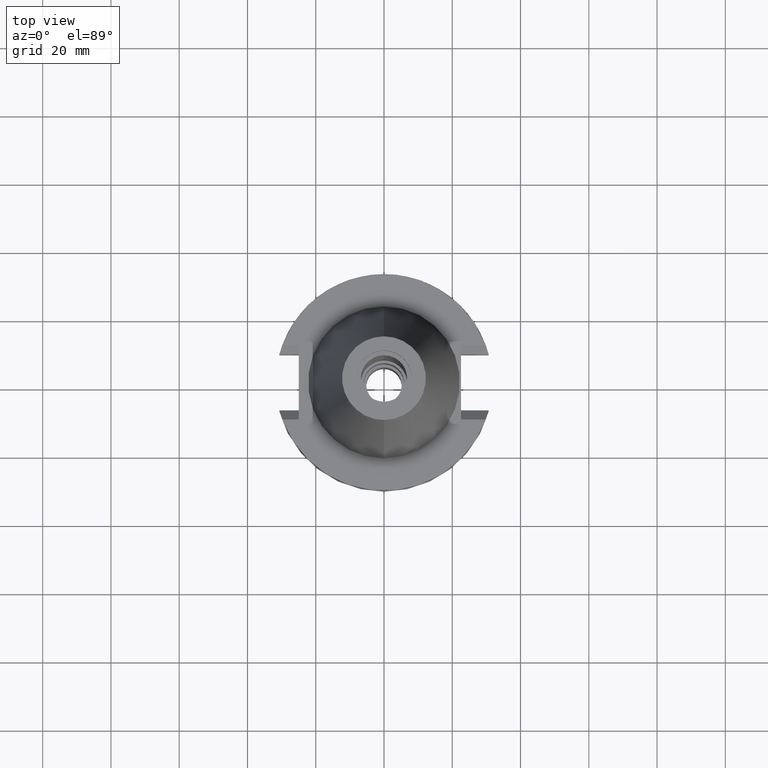
[diagram: clean part render]
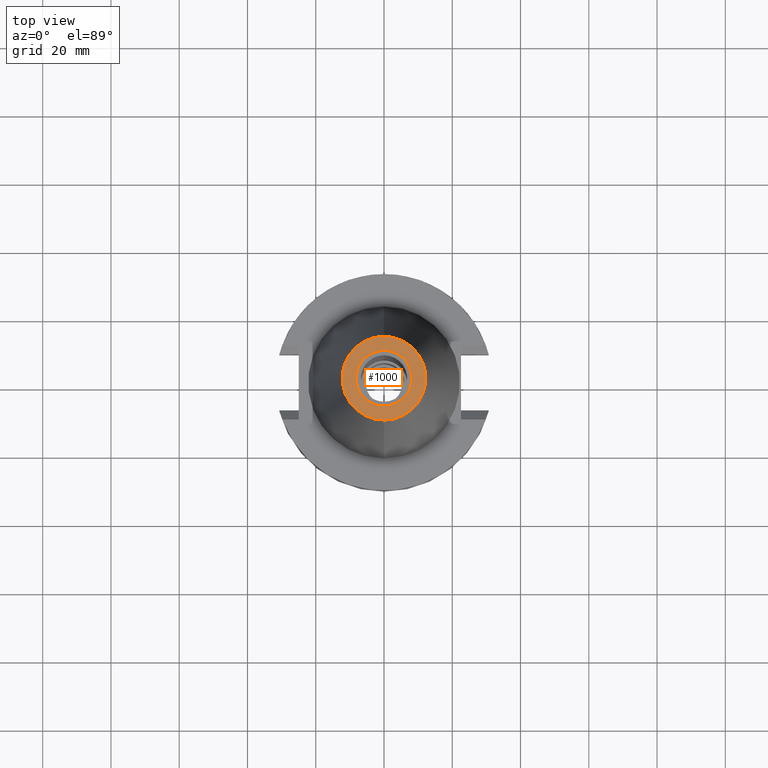
[diagram: same view with one face highlighted and labeled with its STEP entity id]
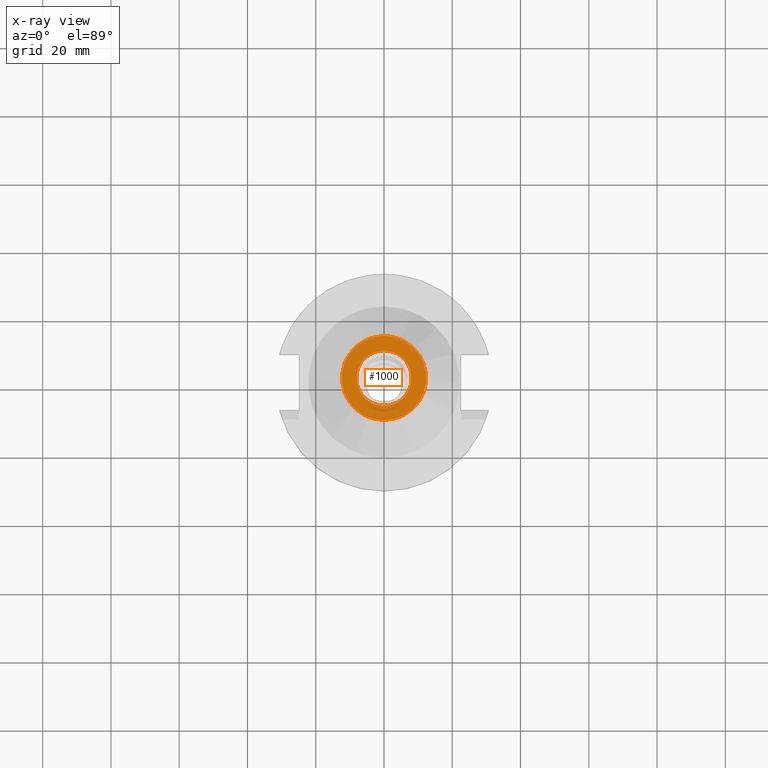
[diagram: x-ray of the same camera — body ghosted, the highlighted face saturated]
A machine part, top view. The second image highlights one B-rep face of the part: STEP entity #1000.
The next image is the same camera in x-ray: the body ghosted, the highlighted face saturated — about 0% of this face is hidden behind the body in this view.
In plain terms, the highlighted planar face has unit normal (0, 0, -1).
Its self-contained STEP definition (entity closure, byte-faithful):
#77 = DIRECTION ( 'NONE',  ( 0.0000000000000000000, 0.0000000000000000000, -1.000000000000000000 ) ) ;
#128 = CARTESIAN_POINT ( 'NONE',  ( 0.0000000000000000000, -8.160000000000000142, 68.25000000000000000 ) ) ;
#134 = AXIS2_PLACEMENT_3D ( 'NONE', #1351, #1850, #2632 ) ;
#138 = DIRECTION ( 'NONE',  ( 0.0000000000000000000, 0.0000000000000000000, 1.000000000000000000 ) ) ;
#204 = EDGE_LOOP ( 'NONE', ( #2183, #1983 ) ) ;
#327 = ORIENTED_EDGE ( 'NONE', *, *, #2310, .F. ) ;
#356 = PLANE ( 'NONE',  #134 ) ;
#377 = VERTEX_POINT ( 'NONE', #128 ) ;
#514 = CARTESIAN_POINT ( 'NONE',  ( 0.0000000000000000000, 2.175921816554999513E-14, 68.25000000000000000 ) ) ;
#919 = EDGE_LOOP ( 'NONE', ( #327, #3197 ) ) ;
#955 = AXIS2_PLACEMENT_3D ( 'NONE', #1813, #77, #2850 ) ;
#1000 = ADVANCED_FACE ( 'NONE', ( #1075, #2678 ), #356, .F. ) ;
#1010 = DIRECTION ( 'NONE',  ( 0.0000000000000000000, 1.000000000000000000, 0.0000000000000000000 ) ) ;
#1075 = FACE_OUTER_BOUND ( 'NONE', #919, .T. ) ;
#1115 = AXIS2_PLACEMENT_3D ( 'NONE', #2082, #1277, #2663 ) ;
#1139 = CARTESIAN_POINT ( 'NONE',  ( 0.0000000000000000000, 12.27186888070000137, 68.25000000000000000 ) ) ;
#1156 = CARTESIAN_POINT ( 'NONE',  ( 0.0000000000000000000, -12.27186888070000137, 68.25000000000000000 ) ) ;
#1223 = DIRECTION ( 'NONE',  ( 0.0000000000000000000, 0.0000000000000000000, 1.000000000000000000 ) ) ;
#1241 = VERTEX_POINT ( 'NONE', #1836 ) ;
#1277 = DIRECTION ( 'NONE',  ( 0.0000000000000000000, 0.0000000000000000000, -1.000000000000000000 ) ) ;
#1340 = CIRCLE ( 'NONE', #1720, 8.160000000000000142 ) ;
#1351 = CARTESIAN_POINT ( 'NONE',  ( 0.0000000000000000000, 2.060468239564999825E-14, 68.25000000000000000 ) ) ;
#1374 = VERTEX_POINT ( 'NONE', #1156 ) ;
#1554 = EDGE_CURVE ( 'NONE', #1241, #377, #3134, .T. ) ;
#1681 = EDGE_CURVE ( 'NONE', #1374, #1883, #2378, .T. ) ;
#1720 = AXIS2_PLACEMENT_3D ( 'NONE', #2461, #138, #2725 ) ;
#1813 = CARTESIAN_POINT ( 'NONE',  ( 0.0000000000000000000, 1.642557519355999895E-14, 68.25000000000000000 ) ) ;
#1836 = CARTESIAN_POINT ( 'NONE',  ( 0.0000000000000000000, 8.160000000000000142, 68.25000000000000000 ) ) ;
#1850 = DIRECTION ( 'NONE',  ( 0.0000000000000000000, 0.0000000000000000000, -1.000000000000000000 ) ) ;
#1883 = VERTEX_POINT ( 'NONE', #1139 ) ;
#1944 = EDGE_CURVE ( 'NONE', #377, #1241, #1340, .T. ) ;
#1983 = ORIENTED_EDGE ( 'NONE', *, *, #1944, .F. ) ;
#2082 = CARTESIAN_POINT ( 'NONE',  ( 0.0000000000000000000, 1.642557519355999895E-14, 68.25000000000000000 ) ) ;
#2183 = ORIENTED_EDGE ( 'NONE', *, *, #1554, .F. ) ;
#2310 = EDGE_CURVE ( 'NONE', #1883, #1374, #3243, .T. ) ;
#2378 = CIRCLE ( 'NONE', #1115, 12.27186888070000137 ) ;
#2461 = CARTESIAN_POINT ( 'NONE',  ( 0.0000000000000000000, 2.175921816554999513E-14, 68.25000000000000000 ) ) ;
#2632 = DIRECTION ( 'NONE',  ( 0.0000000000000000000, -1.000000000000000000, 0.0000000000000000000 ) ) ;
#2663 = DIRECTION ( 'NONE',  ( 0.0000000000000000000, -1.000000000000000000, 0.0000000000000000000 ) ) ;
#2678 = FACE_BOUND ( 'NONE', #204, .T. ) ;
#2725 = DIRECTION ( 'NONE',  ( 0.0000000000000000000, -1.000000000000000000, 0.0000000000000000000 ) ) ;
#2850 = DIRECTION ( 'NONE',  ( 0.0000000000000000000, 1.000000000000000000, 0.0000000000000000000 ) ) ;
#3134 = CIRCLE ( 'NONE', #3291, 8.160000000000000142 ) ;
#3197 = ORIENTED_EDGE ( 'NONE', *, *, #1681, .F. ) ;
#3243 = CIRCLE ( 'NONE', #955, 12.27186888070000137 ) ;
#3291 = AXIS2_PLACEMENT_3D ( 'NONE', #514, #1223, #1010 ) ;